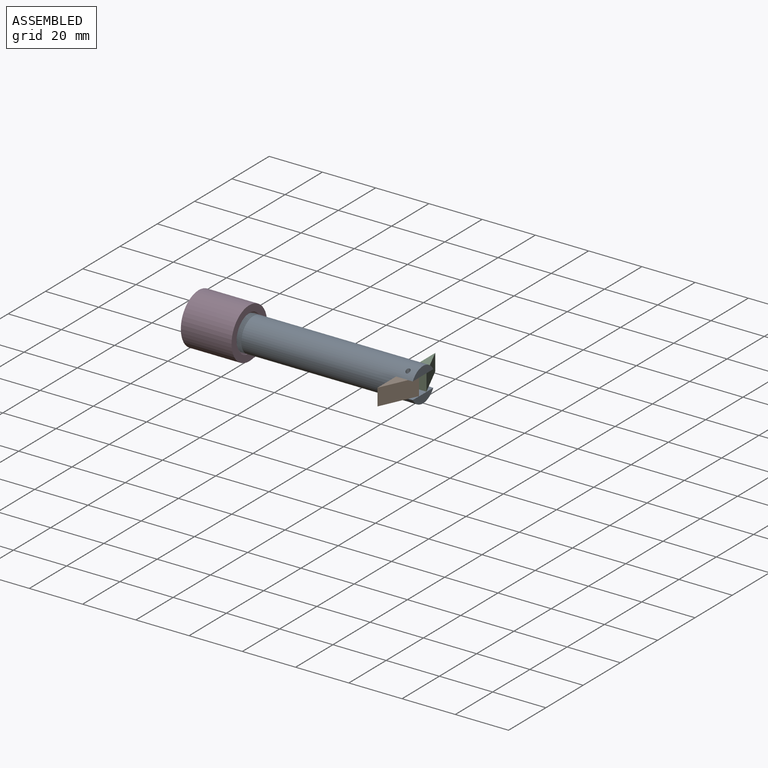
[diagram: assembled view]
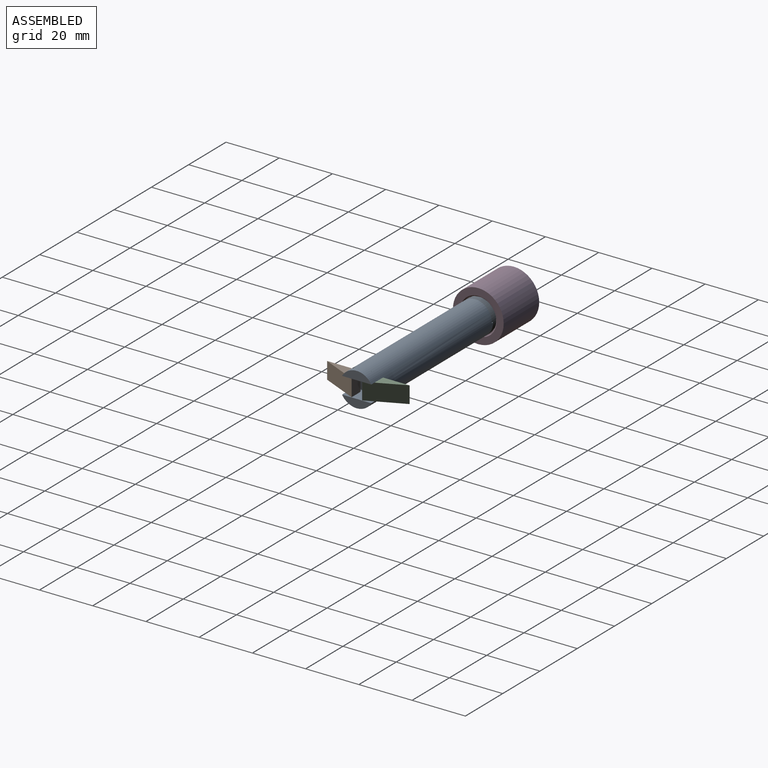
[diagram: assembled view, second angle]
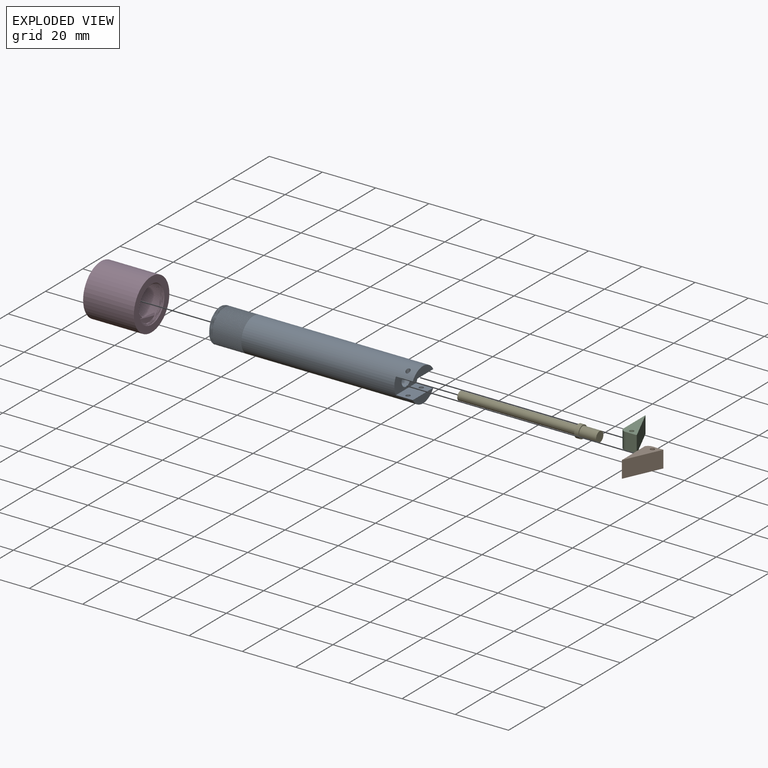
[diagram: exploded view]
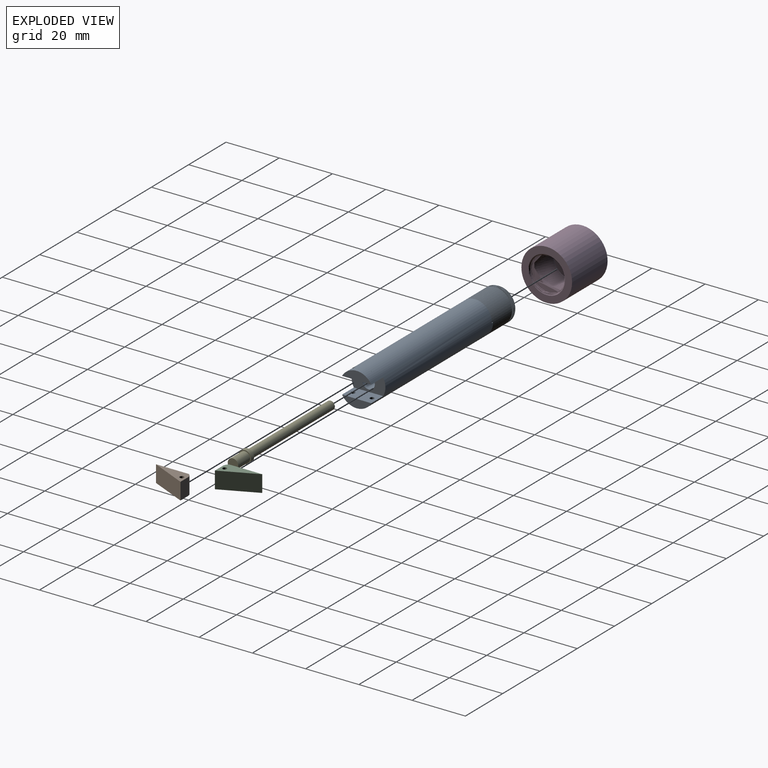
[diagram: exploded view, second angle]
ASSEMBLY  parts=5 mates=3
PART A: 43 faces, bbox 76.9x13x14.9 mm
  f0: cylinder r=1.59mm len=22.23mm, axis (1,0,0), area 221.7mm2, adj f1,f33
  f1: plane 4.76x4.76mm, normal (1,0,0), area 9.9mm2, adj f0,f2
  f2: cylinder r=2.38mm len=9.53mm, axis (1,0,0), area 142.5mm2, adj f1,f3
  f3: plane 12.7x6.35mm, normal (1,0,0), area 59.3mm2, adj f2,f4,f6,f32
  f4: plane 11x6.35mm, normal (0,0,1), area 65.9mm2, adj f3,f5,f6,f41,f42
  f5: plane 11.1x3.22mm, normal (1,0,0), area 24.8mm2, adj f4,f6
  f6: cylinder r=6.35mm len=64.19mm, axis (-1,0,0), area 2454.5mm2, adj f3,f4,f5,f7,f8,f30,f31,f32
  f7: plane 0.61x0.53mm, normal (0,0,1), area 0.2mm2, adj f6,f8,f31
  f8: bspline ~14.66x12.8mm, area 452.3mm2, adj f6,f7,f9,f10,f11,f12,f13,f14
  f9: cylinder r=6.35mm len=12.7mm, axis (-1,0,0), area 0.8mm2, adj f8,f10,f30,f31
  f10: cylinder r=6.35mm len=12.7mm, axis (-1,0,0), area 0.8mm2, adj f8,f9,f11,f31
  f11: cylinder r=6.35mm len=12.7mm, axis (-1,0,0), area 0.8mm2, adj f8,f10,f12,f31
  f12: cylinder r=6.35mm len=12.7mm, axis (-1,0,0), area 0.8mm2, adj f8,f11,f13,f31
  f13: cylinder r=6.35mm len=12.7mm, axis (-1,0,0), area 0.8mm2, adj f8,f12,f14,f31
  f14: cylinder r=6.35mm len=12.7mm, axis (-1,0,0), area 0.8mm2, adj f8,f13,f15,f31
  f15: cylinder r=6.35mm len=12.7mm, axis (-1,0,0), area 0.8mm2, adj f8,f14,f16,f31
  f16: cylinder r=6.35mm len=12.7mm, axis (-1,0,0), area 0.8mm2, adj f8,f15,f17,f31
  f17: cylinder r=6.35mm len=12.7mm, axis (-1,0,0), area 0.8mm2, adj f8,f16,f18,f31
  f18: cylinder r=6.35mm len=12.7mm, axis (-1,0,0), area 0.8mm2, adj f8,f17,f19,f31
  f19: cylinder r=6.35mm len=12.7mm, axis (-1,0,0), area 0.8mm2, adj f8,f18,f20,f31
  f20: cylinder r=6.35mm len=12.7mm, axis (-1,0,0), area 0.8mm2, adj f8,f19,f21,f31
  f21: cylinder r=6.35mm len=12.7mm, axis (-1,0,0), area 0.8mm2, adj f8,f20,f22,f31
  f22: cylinder r=6.35mm len=12.7mm, axis (-1,0,0), area 0.8mm2, adj f8,f21,f23,f31
  f23: cylinder r=6.35mm len=12.7mm, axis (-1,0,0), area 0.8mm2, adj f8,f22,f24,f31
  f24: cylinder r=6.35mm len=12.7mm, axis (-1,0,0), area 0.8mm2, adj f8,f23,f25,f31
  f25: cylinder r=6.35mm len=12.7mm, axis (-1,0,0), area 0.8mm2, adj f8,f24,f26,f31
  f26: cylinder r=6.35mm len=12.7mm, axis (-1,0,0), area 0.6mm2, adj f8,f25,f27,f31
  f27: cone r=6.35mm half-angle=45deg, axis (1,0,0), area 1mm2, adj f8,f26,f28,f31
  f28: plane 12.48x12.35mm, normal (-1,0,0), area 66.5mm2, adj f8,f27,f29,f31
  f29: cylinder r=3.97mm len=38.1mm, axis (-1,0,0), area 950.1mm2, adj f28,f33
  f30: cylinder r=6.35mm len=12.7mm, axis (-1,0,0), area 0.8mm2, adj f6,f8,f9,f31
  f31: bspline ~14.66x13.01mm, area 465.3mm2, adj f6,f7,f8,f9,f10,f11,f12,f13
  f32: plane 11x6.35mm, normal (0,0,-1), area 65.9mm2, adj f3,f6,f37,f39,f40
  f33: plane 7.94x7.94mm, normal (-1,0,0), area 41.6mm2, adj f0,f29
  f34: cylinder r=6.35mm len=0mm, axis (-1,0,0), area 0mm2, adj f35,f38
  f35: plane 0x0mm, normal (0,0,1), area 0mm2, adj f34,f38
  f36: cylinder r=6.35mm len=1.59mm, axis (-1,0,0), area 2.4mm2, adj f39
  f37: plane 11.1x3.22mm, normal (1,0,0), area 24.8mm2, adj f6,f32
  f38: plane 0x0mm, normal (1,0,0), area 0mm2, adj f34,f35
  f39: cylinder r=0.79mm len=2.07mm, axis (0,0,1), area 10.3mm2, adj f32,f36
  f40: cylinder r=0.79mm len=2.07mm, axis (0,0,1), area 10.3mm2, adj f6,f32
  f41: cylinder r=0.79mm len=2.07mm, axis (0,0,1), area 10.3mm2, adj f4,f6
  f42: cylinder r=0.79mm len=2.07mm, axis (0,0,1), area 10.3mm2, adj f4,f6
PART B: 7 faces, bbox 13.5x6.4x6.2 mm
  f0: plane 13.49x6.35mm, normal (-0.42,0,0.91), area 94.2mm2, adj f1,f4,f5,f6
  f1: plane 12.31x6.35mm, normal (0,0,-1), area 78.1mm2, adj f0,f2,f5,f6
  f2: cylinder r=2.3mm len=6.35mm, axis (0,1,0), area 15.6mm2, adj f1,f4,f5,f6
  f3: cylinder r=0.79mm len=6.35mm, axis (0,1,0), area 31.7mm2, adj f5,f6
  f4: plane 6.35x4.14mm, normal (1,0,0), area 26.3mm2, adj f0,f2,f5,f6
  f5: plane 13.49x6.16mm, normal (0,-1,0), area 38.8mm2, adj f0,f1,f2,f3,f4
  f6: plane 13.49x6.16mm, normal (0,1,0), area 38.8mm2, adj f0,f1,f2,f3,f4
PART C: same geometry as B
PART D: 10 faces, bbox 19.5x19.1x19.1 mm
  f0: cylinder r=6.35mm len=12.7mm, axis (-1,0,0), area 85.7mm2, adj f4,f5,f6,f7,f8
  f1: cylinder r=9.53mm len=19.05mm, axis (-1,0,0), area 1140.1mm2, adj f2,f3
  f2: plane 19.05x19.05mm, normal (1,0,0), area 253.4mm2, adj f1,f9
  f3: plane 19.06x19.06mm, normal (-1,0,0), area 137.2mm2, adj f1,f5,f6,f7
  f4: plane 12.7x12.7mm, normal (-1,0,0), area 95mm2, adj f0,f9
  f5: cone r=6.35mm half-angle=45deg, axis (-1,0,0), area 14.8mm2, adj f0,f3,f6,f7
  f6: bspline ~15.89x13.76mm, area 496.8mm2, adj f0,f3,f5,f7,f8
  f7: bspline ~15.89x13.76mm, area 483mm2, adj f0,f3,f5,f6,f8
  f8: plane 0.61x0.53mm, normal (0,0,1), area 0.2mm2, adj f0,f6,f7
  f9: cylinder r=3.17mm len=6.35mm, axis (-1,0,0), area 126.7mm2, adj f2,f4
PART E: 7 faces, bbox 52.4x4.8x4.8 mm
  f0: cylinder r=1.59mm len=44.45mm, axis (-1,0,0), area 443.4mm2, adj f1,f4
  f1: plane 3.18x3.18mm, normal (1,0,0), area 7.9mm2, adj f0
  f2: cylinder r=2.38mm len=4.76mm, axis (1,0,0), area 23.8mm2, adj f3,f4
  f3: plane 4.76x4.76mm, normal (-1,0,0), area 5.5mm2, adj f2,f5
  f4: plane 4.76x4.76mm, normal (1,0,0), area 9.9mm2, adj f0,f2
  f5: cylinder r=1.98mm len=6.35mm, axis (1,0,0), area 79.1mm2, adj f3,f6
  f6: plane 3.97x3.97mm, normal (-1,0,0), area 12.4mm2, adj f5
PLACE A t=(-1.42,-1.18,-0.18)mm fixed
PLACE B rot(axis=(0.58,0.58,0.58),120deg) t=(-19.46,-45.39,2.99)mm
PLACE C rot(axis=(-0.58,0.58,-0.58),120deg) t=(-19.46,43.02,-3.36)mm
PLACE D rot(axis=(0,1,0),180deg) t=(-28.58,-1.18,-0.18)mm
PLACE E rot(axis=(0,0,1),180deg) t=(21.6,-1.18,-0.18)mm
MATE slider E.f5 <-> A.f2  axis (-1,0,0) through (23.18,-1.18,-0.18)mm
MATE revolute A.f40 <-> B.f3  axis (0,0,-1) through (33.55,-4.76,2.99)mm
MATE slider D.f0 <-> A.f6  axis (1,0,0) through (-28.58,-1.18,-0.18)mm
